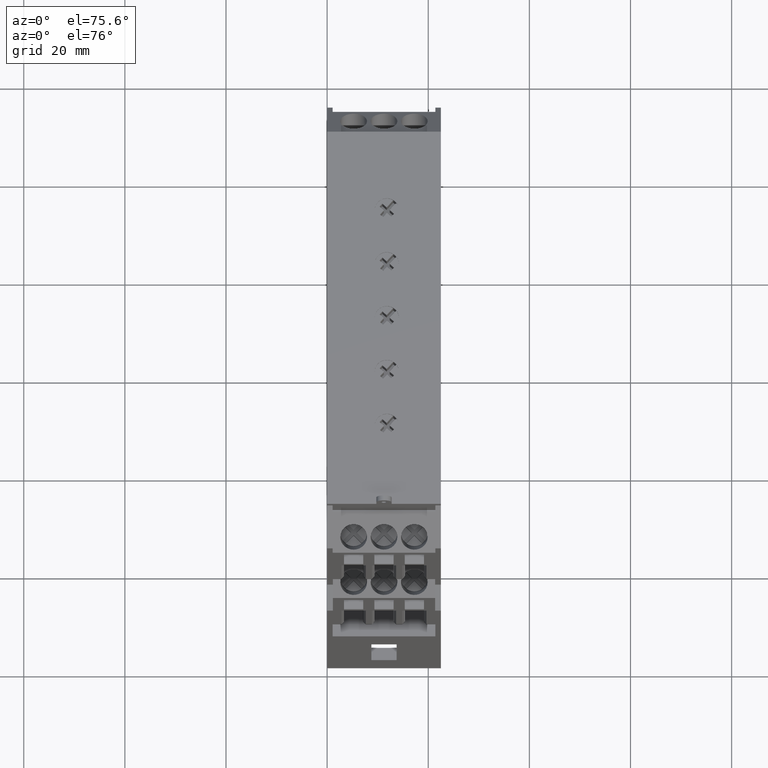
[diagram: clean part render]
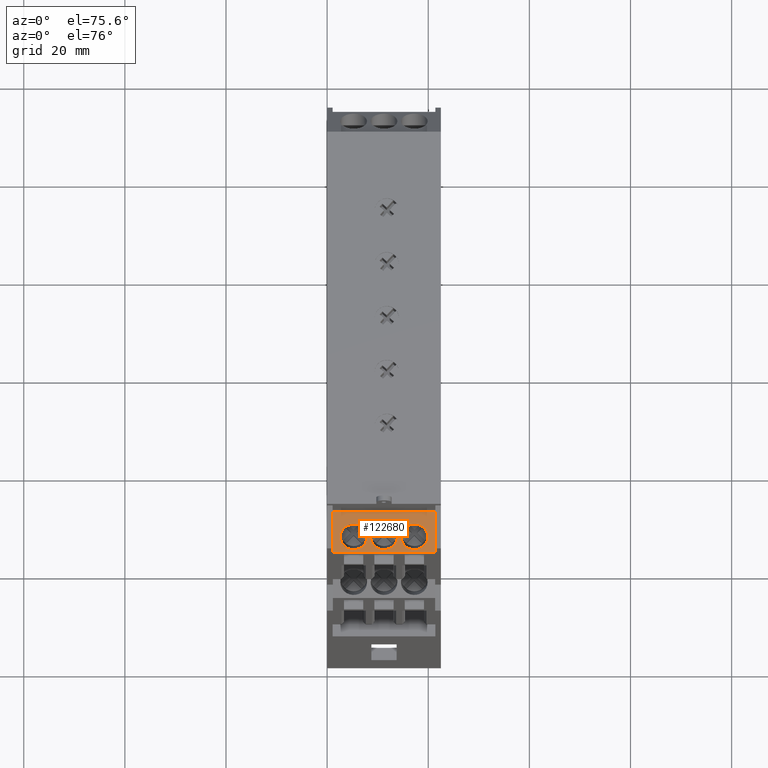
[diagram: same view with one face highlighted and labeled with its STEP entity id]
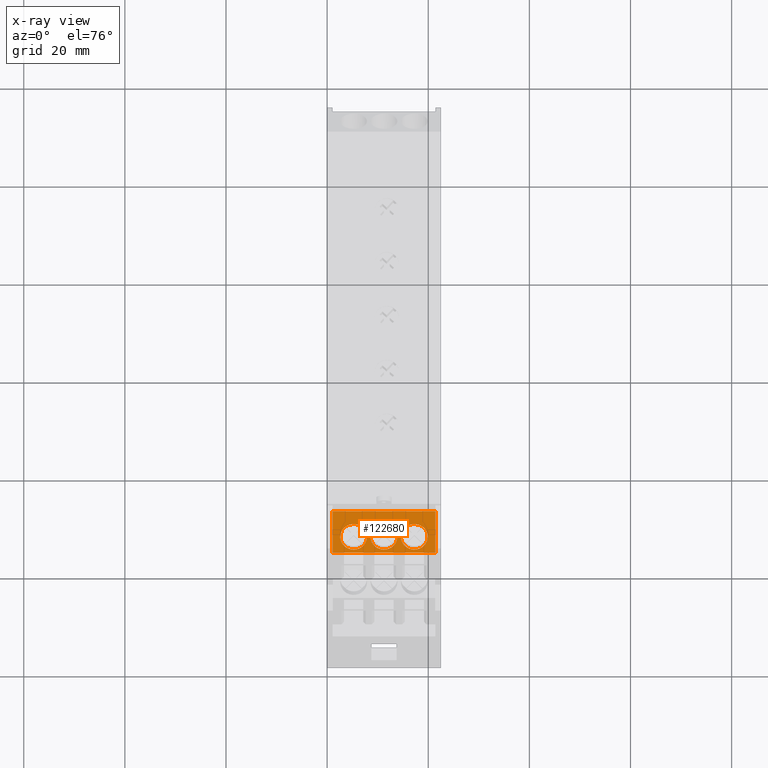
[diagram: x-ray of the same camera — body ghosted, the highlighted face saturated]
A machine part, auxiliary view. The second image highlights one B-rep face of the part: STEP entity #122680.
The next image is the same camera in x-ray: the body ghosted, the highlighted face saturated — about 0% of this face is hidden behind the body in this view.
In plain terms, the highlighted planar face has unit normal (0, 0.7071, -0.7071).
Its self-contained STEP definition (entity closure, byte-faithful):
#45390=CARTESIAN_POINT('',(-10.0893993066638,-48.15123605348,
152.097547264392));
#45400=VERTEX_POINT('',#45390);
#45430=CARTESIAN_POINT('',(0.121201386672368,-48.1512360534854,
152.097547264387));
#45440=DIRECTION('',(1.,-1.7830043539703E-18,3.46944695195361E-18));
#45450=VECTOR('',#45440,1.);
#45460=LINE('',#45430,#45450);
#45470=CARTESIAN_POINT('',(10.2106006933362,-48.1512360534826,
152.09754726439));
#45480=VERTEX_POINT('',#45470);
#45490=EDGE_CURVE('',#45400,#45480,#45460,.T.);
#121810=CARTESIAN_POINT('',(-10.0393993066638,-41.4245533092639,
158.824230008609));
#121820=DIRECTION('',(3.7140439362709E-18,0.707106781186571,
-0.707106781186524));
#121830=DIRECTION('',(-1.19249499711598E-18,0.707106781186524,
0.707106781186571));
#121840=AXIS2_PLACEMENT_3D('',#121810,#121820,#121830);
#121850=PLANE('',#121840);
#121860=CARTESIAN_POINT('',(6.06060069333619,-45.5841196470781,
154.664663670794));
#121870=DIRECTION('',(3.7140439362709E-18,0.707106781186571,
-0.707106781186524));
#121880=DIRECTION('',(3.36341227739459E-16,0.707106781186524,
0.707106781186571));
#121890=AXIS2_PLACEMENT_3D('',#121860,#121870,#121880);
#121900=ELLIPSE('',#121890,2.9239514852506,2.65);
#121910=CARTESIAN_POINT('',(3.41060069333619,-45.5841196470781,
154.664663670794));
#121920=VERTEX_POINT('',#121910);
#121930=CARTESIAN_POINT('',(8.71060069333619,-45.5841196470781,
154.664663670794));
#121940=VERTEX_POINT('',#121930);
#121950=EDGE_CURVE('',#121920,#121940,#121900,.T.);
#121960=ORIENTED_EDGE('',*,*,#121950,.T.);
#121970=CARTESIAN_POINT('',(3.92539462557731,-46.8086690833923,
153.44011423448));
#121980=VERTEX_POINT('',#121970);
#121990=EDGE_CURVE('',#121980,#121920,#121900,.T.);
#122000=ORIENTED_EDGE('',*,*,#121990,.T.);
#122010=EDGE_CURVE('',#121940,#121980,#121900,.T.);
#122020=ORIENTED_EDGE('',*,*,#122010,.T.);
#122030=EDGE_LOOP('',(#122020,#122000,#121960));
#122040=FACE_BOUND('',#122030,.T.);
#122050=CARTESIAN_POINT('',(-5.93939930666381,-45.5841196470781,
154.664663670794));
#122060=DIRECTION('',(3.7140439362709E-18,0.707106781186571,
-0.707106781186524));
#122070=DIRECTION('',(3.36341227739459E-16,0.707106781186524,
0.707106781186571));
#122080=AXIS2_PLACEMENT_3D('',#122050,#122060,#122070);
#122090=ELLIPSE('',#122080,2.9239514852506,2.65);
#122100=CARTESIAN_POINT('',(-8.58939930666381,-45.5841196470781,
154.664663670794));
#122110=VERTEX_POINT('',#122100);
#122120=CARTESIAN_POINT('',(-3.28939930666381,-45.5841196470781,
154.664663670794));
#122130=VERTEX_POINT('',#122120);
#122140=EDGE_CURVE('',#122110,#122130,#122090,.T.);
#122150=ORIENTED_EDGE('',*,*,#122140,.T.);
#122160=CARTESIAN_POINT('',(-4.36987866385415,-47.2500202509773,
152.998763066895));
#122170=VERTEX_POINT('',#122160);
#122180=EDGE_CURVE('',#122170,#122110,#122090,.T.);
#122190=ORIENTED_EDGE('',*,*,#122180,.T.);
#122200=EDGE_CURVE('',#122130,#122170,#122090,.T.);
#122210=ORIENTED_EDGE('',*,*,#122200,.T.);
#122220=EDGE_LOOP('',(#122210,#122190,#122150));
#122230=FACE_BOUND('',#122220,.T.);
#122240=CARTESIAN_POINT('',(0.0606006933361858,-45.5841196470781,
154.664663670794));
#122250=DIRECTION('',(3.7140439362709E-18,0.707106781186571,
-0.707106781186524));
#122260=DIRECTION('',(3.36341227739459E-16,0.707106781186524,
0.707106781186571));
#122270=AXIS2_PLACEMENT_3D('',#122240,#122250,#122260);
#122280=ELLIPSE('',#122270,2.9239514852506,2.65);
#122290=CARTESIAN_POINT('',(2.71060069333619,-45.5841196470781,
154.664663670794));
#122300=VERTEX_POINT('',#122290);
#122310=CARTESIAN_POINT('',(-2.58939930666382,-45.5841196470781,
154.664663670794));
#122320=VERTEX_POINT('',#122310);
#122330=EDGE_CURVE('',#122300,#122320,#122280,.T.);
#122340=ORIENTED_EDGE('',*,*,#122330,.T.);
#122350=CARTESIAN_POINT('',(-2.0746053744227,-44.3595702107638,
155.889213107109));
#122360=VERTEX_POINT('',#122350);
#122370=EDGE_CURVE('',#122360,#122300,#122280,.T.);
#122380=ORIENTED_EDGE('',*,*,#122370,.T.);
#122390=EDGE_CURVE('',#122320,#122360,#122280,.T.);
#122400=ORIENTED_EDGE('',*,*,#122390,.T.);
#122410=EDGE_LOOP('',(#122400,#122380,#122340));
#122420=FACE_BOUND('',#122410,.T.);
#122430=CARTESIAN_POINT('',(-10.0893993066638,-200.248783317862,0.));
#122440=DIRECTION('',(0.,0.707106781186524,0.707106781186571));
#122450=VECTOR('',#122440,1.);
#122460=LINE('',#122430,#122450);
#122470=CARTESIAN_POINT('',(-10.0893993066638,-41.4245533092639,
158.824230008609));
#122480=VERTEX_POINT('',#122470);
#122490=EDGE_CURVE('',#45400,#122480,#122460,.T.);
#122500=ORIENTED_EDGE('',*,*,#122490,.F.);
#122510=CARTESIAN_POINT('',(0.,-41.4245533092639,158.824230008609));
#122520=DIRECTION('',(-1.,1.7830043539703E-18,-3.46944695195361E-18));
#122530=VECTOR('',#122520,1.);
#122540=LINE('',#122510,#122530);
#122550=CARTESIAN_POINT('',(10.2106006933362,-41.4245533092639,
158.824230008609));
#122560=VERTEX_POINT('',#122550);
#122570=EDGE_CURVE('',#122560,#122480,#122540,.T.);
#122580=ORIENTED_EDGE('',*,*,#122570,.T.);
#122590=CARTESIAN_POINT('',(10.2106006933362,-200.248783317862,0.));
#122600=DIRECTION('',(0.,0.707106781186524,0.707106781186571));
#122610=VECTOR('',#122600,1.);
#122620=LINE('',#122590,#122610);
#122630=EDGE_CURVE('',#45480,#122560,#122620,.T.);
#122640=ORIENTED_EDGE('',*,*,#122630,.T.);
#122650=ORIENTED_EDGE('',*,*,#45490,.T.);
#122660=EDGE_LOOP('',(#122650,#122640,#122580,#122500));
#122670=FACE_OUTER_BOUND('',#122660,.T.);
#122680=ADVANCED_FACE('',(#122040,#122230,#122420,#122670),#121850,.F.);